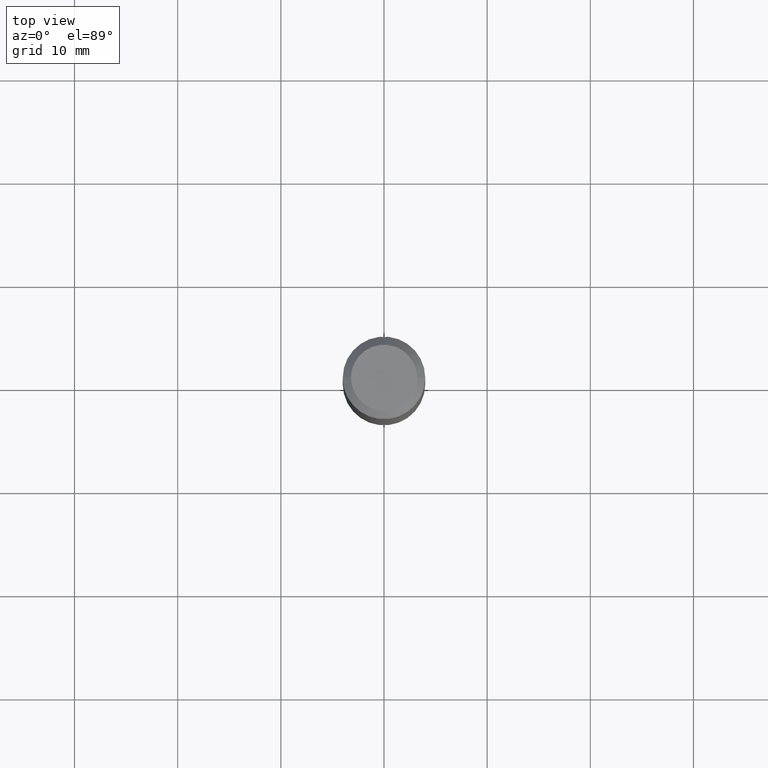
[diagram: clean part render]
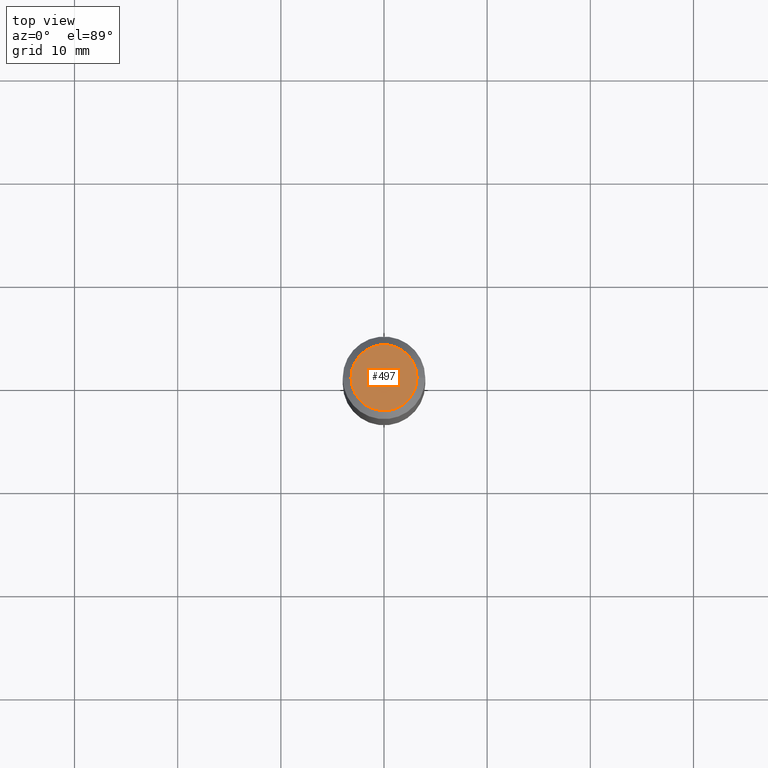
[diagram: same view with one face highlighted and labeled with its STEP entity id]
A machine part, top view. The second image highlights one B-rep face of the part: STEP entity #497.
In plain terms, the highlighted planar face has unit normal (0, -0, -1).
Its self-contained STEP definition (entity closure, byte-faithful):
#113 = VERTEX_POINT ( 'NONE', #216 ) ;
#124 = CARTESIAN_POINT ( 'NONE',  ( -0.1260000000000000009, 9.348441284752484904E-16, 3.860086710906110326E-18 ) ) ;
#125 = CARTESIAN_POINT ( 'NONE',  ( -9.439721640706193907E-47, 1.347742071746725396E-32, 3.860086710912455880E-18 ) ) ;
#137 = DIRECTION ( 'NONE',  ( -2.445468806185136597E-29, 3.491481338843145583E-15, 1.000000000000000000 ) ) ;
#204 = DIRECTION ( 'NONE',  ( 1.000000000000000000, -6.982962677686265922E-15, 4.876281427513067258E-29 ) ) ;
#212 = EDGE_CURVE ( 'NONE', #264, #113, #278, .T. ) ;
#216 = CARTESIAN_POINT ( 'NONE',  ( 0.1260000000000000009, -1.027466422270894443E-15, 3.860086710919124220E-18 ) ) ;
#220 = DIRECTION ( 'NONE',  ( 1.000000000000000000, -6.982962677686265922E-15, 4.876281427513067258E-29 ) ) ;
#232 = PLANE ( 'NONE',  #427 ) ;
#253 = AXIS2_PLACEMENT_3D ( 'NONE', #337, #137, #220 ) ;
#258 = EDGE_LOOP ( 'NONE', ( #467, #378 ) ) ;
#264 = VERTEX_POINT ( 'NONE', #124 ) ;
#278 = CIRCLE ( 'NONE', #487, 0.1260000000000000009 ) ;
#303 = CARTESIAN_POINT ( 'NONE',  ( -4.719860820353096954E-47, 6.738710358733626979E-33, 1.930043355456227940E-18 ) ) ;
#304 = CIRCLE ( 'NONE', #253, 0.1260000000000000009 ) ;
#337 = CARTESIAN_POINT ( 'NONE',  ( -9.439721640706193907E-47, 1.347742071746725396E-32, 3.860086710912455880E-18 ) ) ;
#344 = FACE_OUTER_BOUND ( 'NONE', #258, .T. ) ;
#363 = EDGE_CURVE ( 'NONE', #113, #264, #304, .T. ) ;
#378 = ORIENTED_EDGE ( 'NONE', *, *, #363, .T. ) ;
#389 = DIRECTION ( 'NONE',  ( 2.438088387897960049E-29, -3.491481338843145188E-15, -1.000000000000000000 ) ) ;
#427 = AXIS2_PLACEMENT_3D ( 'NONE', #303, #389, #511 ) ;
#467 = ORIENTED_EDGE ( 'NONE', *, *, #212, .T. ) ;
#484 = DIRECTION ( 'NONE',  ( -2.445468806185136597E-29, 3.491481338843145583E-15, 1.000000000000000000 ) ) ;
#487 = AXIS2_PLACEMENT_3D ( 'NONE', #125, #484, #204 ) ;
#497 = ADVANCED_FACE ( 'NONE', ( #344 ), #232, .F. ) ;
#511 = DIRECTION ( 'NONE',  ( -1.000000000000000000, 6.982962677686265922E-15, -4.876176775795935793E-29 ) ) ;